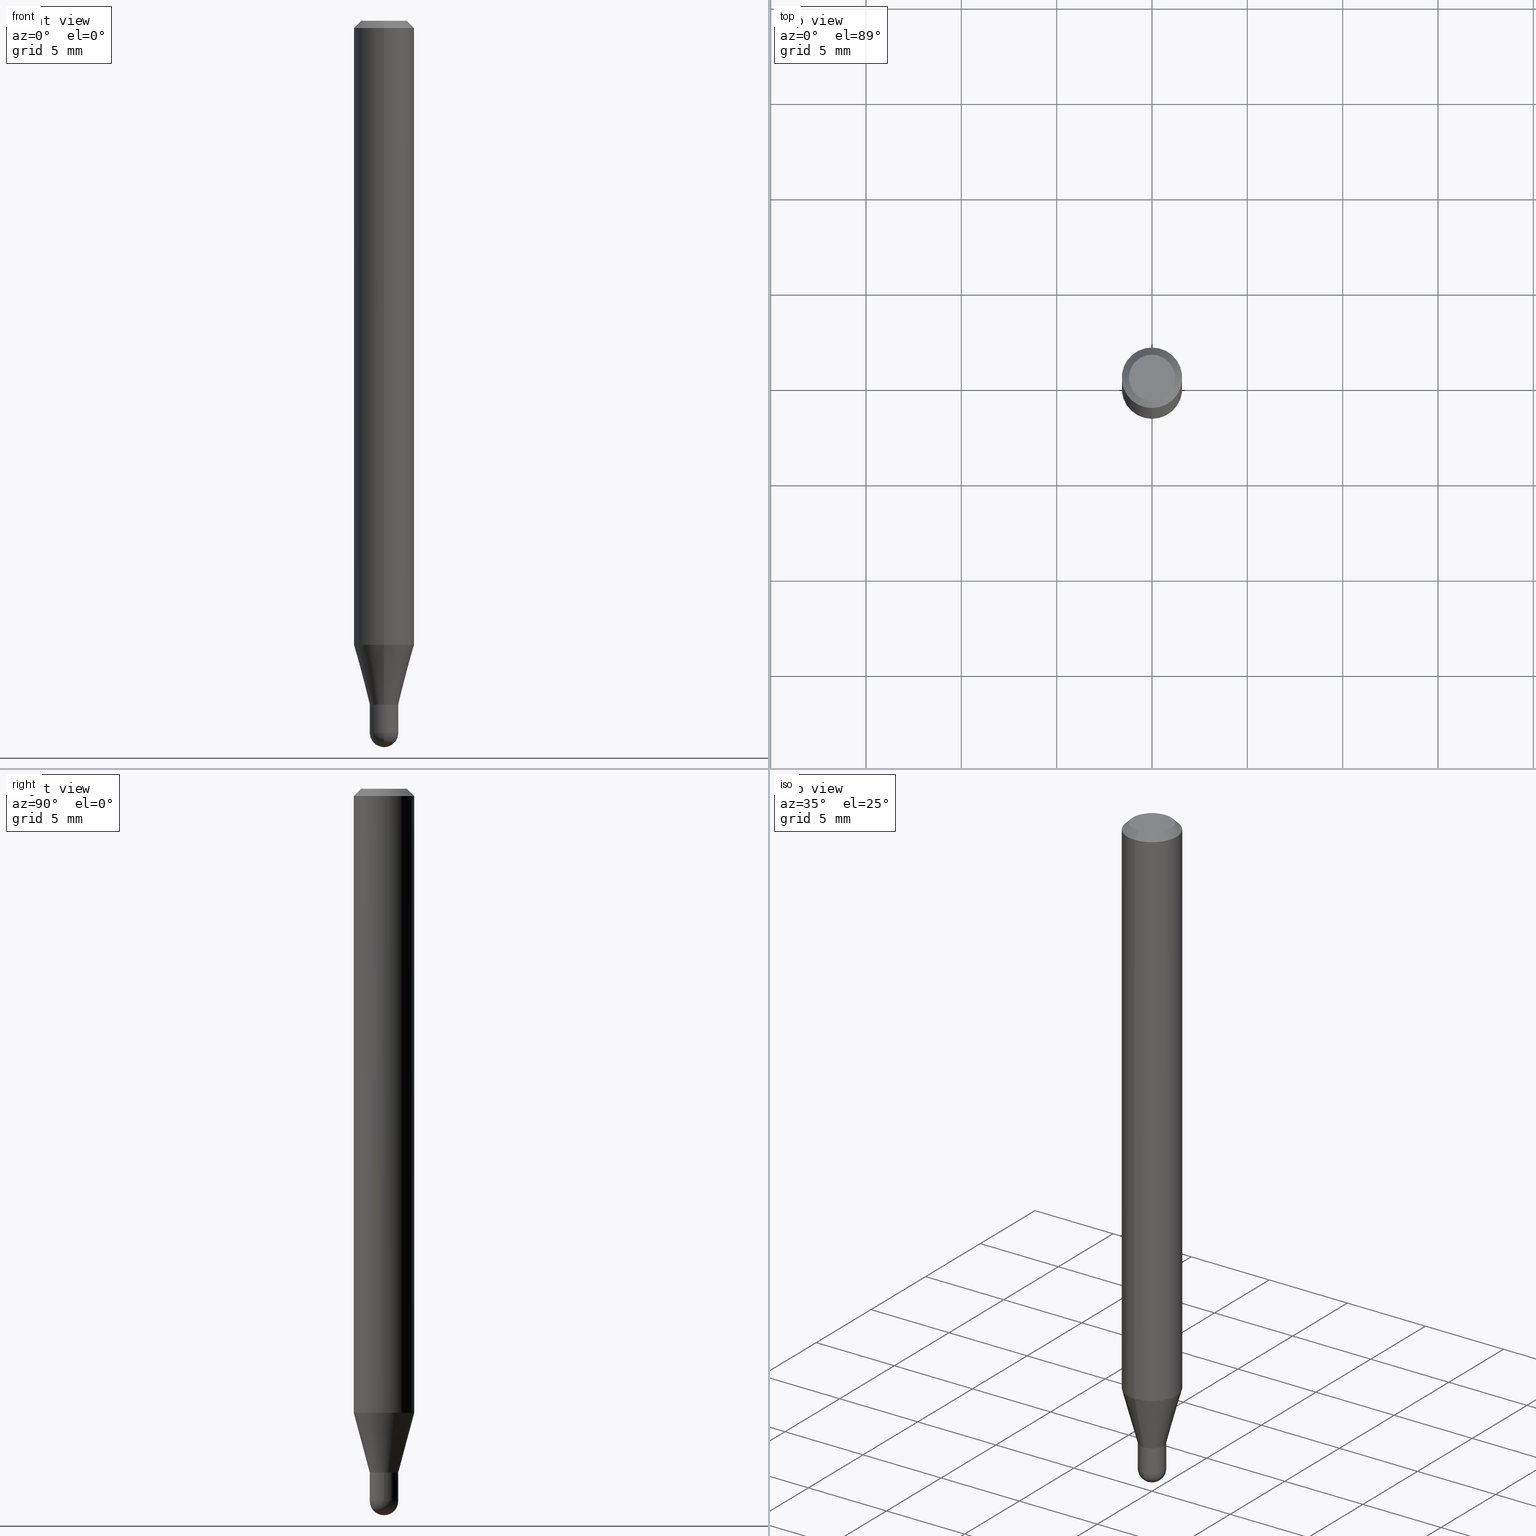
[diagram: canonical four-view strip — front | top / right | iso, engineering-drawing reading convention]
A machine part, canonical four-view strip (front | top / right | iso — engineering-drawing reading convention). The complete STEP part file that produces these views, byte-faithful:
ISO-10303-21;
HEADER;
FILE_DESCRIPTION (( 'STEP AP203' ),
    '1' );
FILE_NAME ('01416.STEP',
    '2024-03-07T20:35:12',
    ( '' ),
    ( '' ),
    'SwSTEP 2.0',
    'SolidWorks 2023',
    '' );
FILE_SCHEMA (( 'CONFIG_CONTROL_DESIGN' ));
ENDSEC;

DATA;
#1 = FACE_OUTER_BOUND ( 'NONE', #349, .T. ) ;
#2 = ORIENTED_EDGE ( 'NONE', *, *, #252, .F. ) ;
#3 = CARTESIAN_POINT ( 'NONE',  ( 3.268496584496797545E-16, 0.02949999999999526612, -1.411500000000000199 ) ) ;
#4 = DIRECTION ( 'NONE',  ( -6.982962677686266711E-15, -1.000000000000000000, 3.491480369690895129E-15 ) ) ;
#5 = EDGE_CURVE ( 'NONE', #366, #427, #245, .T. ) ;
#6 = EDGE_LOOP ( 'NONE', ( #290, #237, #457, #326 ) ) ;
#7 = LOCAL_TIME ( 15, 35, 12.00000000000000000, #25 ) ;
#8 = AXIS2_PLACEMENT_3D ( 'NONE', #67, #225, #190 ) ;
#9 = ORIENTED_EDGE ( 'NONE', *, *, #396, .T. ) ;
#10 = EDGE_CURVE ( 'NONE', #99, #315, #319, .T. ) ;
#11 = EDGE_LOOP ( 'NONE', ( #461, #197, #185, #425 ) ) ;
#12 = EDGE_CURVE ( 'NONE', #375, #415, #206, .T. ) ;
#13 = PERSON_AND_ORGANIZATION ( #231, #292 ) ;
#14 = CARTESIAN_POINT ( 'NONE',  ( 3.593539138942164173E-29, -5.137836016826330348E-15, -1.470500000000000140 ) ) ;
#15 = ORIENTED_EDGE ( 'NONE', *, *, #195, .F. ) ;
#16 = FACE_OUTER_BOUND ( 'NONE', #350, .T. ) ;
#17 = DIRECTION ( 'NONE',  ( -2.445469482940536333E-29, 3.491480369690894735E-15, 1.000000000000000000 ) ) ;
#18 = ORIENTED_EDGE ( 'NONE', *, *, #314, .F. ) ;
#19 = DIRECTION ( 'NONE',  ( -2.445469482940536333E-29, 3.491480369690894735E-15, 1.000000000000000000 ) ) ;
#20 = CARTESIAN_POINT ( 'NONE',  ( 4.440892098500937762E-16, 0.06249999999999546890, -1.288342323350232244 ) ) ;
#21 = ORIENTED_EDGE ( 'NONE', *, *, #168, .F. ) ;
#22 = DIRECTION ( 'NONE',  ( -2.445469482940536333E-29, 3.491480369690894735E-15, 1.000000000000000000 ) ) ;
#23 = DIRECTION ( 'NONE',  ( -2.445469482940536333E-29, 3.491480369690894735E-15, 1.000000000000000000 ) ) ;
#24 = ORIENTED_EDGE ( 'NONE', *, *, #142, .T. ) ;
#25 = COORDINATED_UNIVERSAL_TIME_OFFSET ( 5, 0, .BEHIND. ) ;
#26 = DIRECTION ( 'NONE',  ( 2.445469482940536053E-29, -3.491480369690894735E-15, -1.000000000000000000 ) ) ;
#27 = ORIENTED_EDGE ( 'NONE', *, *, #114, .T. ) ;
#28 = CC_DESIGN_APPROVAL ( #268, ( #240 ) ) ;
#29 = AXIS2_PLACEMENT_3D ( 'NONE', #200, #236, #321 ) ;
#30 = EDGE_CURVE ( 'NONE', #60, #437, #422, .T. ) ;
#31 = CC_DESIGN_APPROVAL ( #242, ( #280 ) ) ;
#32 = AXIS2_PLACEMENT_3D ( 'NONE', #14, #134, #372 ) ;
#33 = CC_DESIGN_DATE_AND_TIME_ASSIGNMENT ( #184, #39, ( #280 ) ) ;
#34 = DIRECTION ( 'NONE',  ( 1.000000000000000000, 0.000000000000000000, 0.000000000000000000 ) ) ;
#35 = AXIS2_PLACEMENT_3D ( 'NONE', #455, #337, #347 ) ;
#36 = ORIENTED_EDGE ( 'NONE', *, *, #168, .T. ) ;
#37 = DIRECTION ( 'NONE',  ( 1.000000000000000000, -6.982962677686250144E-15, 0.000000000000000000 ) ) ;
#38 = DIRECTION ( 'NONE',  ( 1.000000000000000000, -6.982962677686265922E-15, 4.876176775795935793E-29 ) ) ;
#39 = DATE_TIME_ROLE ( 'creation_date' ) ;
#40 = ORIENTED_EDGE ( 'NONE', *, *, #396, .F. ) ;
#41 = AXIS2_PLACEMENT_3D ( 'NONE', #48, #345, #332 ) ;
#42 = AXIS2_PLACEMENT_3D ( 'NONE', #247, #458, #243 ) ;
#43 = ADVANCED_FACE ( 'NONE', ( #74 ), #356, .T. ) ;
#44 = ORIENTED_EDGE ( 'NONE', *, *, #482, .F. ) ;
#45 = COORDINATED_UNIVERSAL_TIME_OFFSET ( 5, 0, .BEHIND. ) ;
#46 = DIRECTION ( 'NONE',  ( -6.982962677686266711E-15, -1.000000000000000000, 3.491480369690895129E-15 ) ) ;
#47 = CYLINDRICAL_SURFACE ( 'NONE', #307, 0.02950000000000000192 ) ;
#48 = CARTESIAN_POINT ( 'NONE',  ( 3.451780175170567435E-29, -4.928224541818698514E-15, -1.411500000000000199 ) ) ;
#49 = CARTESIAN_POINT ( 'NONE',  ( 0.000000000000000000, 0.000000000000000000, 0.000000000000000000 ) ) ;
#50 = ORIENTED_EDGE ( 'NONE', *, *, #302, .F. ) ;
#51 = DIRECTION ( 'NONE',  ( -4.851104656540964275E-15, -0.7071067811865500152, -0.7071067811865450192 ) ) ;
#52 = SHAPE_DEFINITION_REPRESENTATION ( #264, #274 ) ;
#53 = DIRECTION ( 'NONE',  ( 1.000000000000000000, -6.982962677686250144E-15, 0.000000000000000000 ) ) ;
#54 = ORIENTED_EDGE ( 'NONE', *, *, #158, .T. ) ;
#55 = CIRCLE ( 'NONE', #73, 0.02950000000000016498 ) ;
#56 = UNCERTAINTY_MEASURE_WITH_UNIT (LENGTH_MEASURE( 1.000000000000000082E-05 ), #394, 'distance_accuracy_value', 'NONE');
#57 = DIRECTION ( 'NONE',  ( -1.000000000000000000, 6.982962677686265922E-15, -4.883557194083112340E-29 ) ) ;
#58 = CALENDAR_DATE ( 2024, 7, 3 ) ;
#59 = FACE_OUTER_BOUND ( 'NONE', #233, .T. ) ;
#60 = VERTEX_POINT ( 'NONE', #3 ) ;
#61 = CARTESIAN_POINT ( 'NONE',  ( -2.059973989917452358E-16, -0.02950000000000005743, 1.029986709058816069E-16 ) ) ;
#62 = EDGE_LOOP ( 'NONE', ( #459, #501, #24, #279 ) ) ;
#63 = DIRECTION ( 'NONE',  ( -6.982962677686265133E-15, -1.000000000000000000, 0.000000000000000000 ) ) ;
#64 = ORIENTED_EDGE ( 'NONE', *, *, #276, .T. ) ;
#65 = ADVANCED_FACE ( 'NONE', ( #361 ), #226, .T. ) ;
#66 = MANIFOLD_SOLID_BREP ( 'Body-Move/Copy2[2]', #435 ) ;
#67 = CARTESIAN_POINT ( 'NONE',  ( 3.593539138942164173E-29, -5.137836016826330348E-15, -1.470500000000000140 ) ) ;
#68 = CARTESIAN_POINT ( 'NONE',  ( 3.450557440429097488E-29, -4.926478801633853754E-15, -1.411000000000000254 ) ) ;
#69 = EDGE_CURVE ( 'NONE', #437, #125, #277, .T. ) ;
#70 = DIRECTION ( 'NONE',  ( -6.982962677686265922E-15, -1.000000000000000000, 0.000000000000000000 ) ) ;
#71 = AXIS2_PLACEMENT_3D ( 'NONE', #310, #469, #434 ) ;
#72 = CARTESIAN_POINT ( 'NONE',  ( 3.596061879495243621E-29, -5.134223308768845522E-15, -1.470500000000000140 ) ) ;
#73 = AXIS2_PLACEMENT_3D ( 'NONE', #205, #57, #411 ) ;
#74 = FACE_OUTER_BOUND ( 'NONE', #204, .T. ) ;
#75 = DIRECTION ( 'NONE',  ( -2.445469482940536333E-29, 3.491480369690894735E-15, 1.000000000000000000 ) ) ;
#76 = CARTESIAN_POINT ( 'NONE',  ( 3.664419098448086283E-29, -5.242641070350946204E-15, -1.500000000000000222 ) ) ;
#77 = FACE_OUTER_BOUND ( 'NONE', #62, .T. ) ;
#78 = PRODUCT_RELATED_PRODUCT_CATEGORY ( 'detail', '', ( #478 ) ) ;
#79 = AXIS2_PLACEMENT_3D ( 'NONE', #228, #400, #34 ) ;
#80 = CARTESIAN_POINT ( 'NONE',  ( -2.025059176528671736E-16, -0.02900000000000492809, -1.411500000000000199 ) ) ;
#81 = VERTEX_POINT ( 'NONE', #109 ) ;
#82 = LOCAL_TIME ( 15, 35, 12.00000000000000000, #499 ) ;
#83 = VECTOR ( 'NONE', #88, 39.37007874015748143 ) ;
#84 = DIRECTION ( 'NONE',  ( 2.438088387897960049E-29, -3.491481338843145188E-15, -1.000000000000000000 ) ) ;
#85 = ORIENTED_EDGE ( 'NONE', *, *, #223, .F. ) ;
#86 = DIRECTION ( 'NONE',  ( -2.445468806185136877E-29, 3.491481338843145188E-15, 1.000000000000000000 ) ) ;
#87 = DIRECTION ( 'NONE',  ( -1.000000000000000000, 6.982962677686265922E-15, -4.876176775795935793E-29 ) ) ;
#88 = DIRECTION ( 'NONE',  ( -1.807323732225377077E-15, -0.2588190451025249028, 0.9659258262890670910 ) ) ;
#89 = VERTEX_POINT ( 'NONE', #358 ) ;
#90 = ORIENTED_EDGE ( 'NONE', *, *, #12, .F. ) ;
#91 = LINE ( 'NONE', #486, #508 ) ;
#92 = LINE ( 'NONE', #171, #497 ) ;
#93 = ORIENTED_EDGE ( 'NONE', *, *, #154, .F. ) ;
#94 = CIRCLE ( 'NONE', #397, 0.02949999999999999845 ) ;
#95 = ADVANCED_FACE ( 'NONE', ( #77 ), #232, .F. ) ;
#96 = CARTESIAN_POINT ( 'NONE',  ( 3.150601835333700931E-29, -4.498221931419294481E-15, -1.288342323350231799 ) ) ;
#97 = DATE_AND_TIME ( #456, #136 ) ;
#98 = DIRECTION ( 'NONE',  ( 5.024295867788190974E-15, 0.7071067811865681119, 0.7071067811865270336 ) ) ;
#99 = VERTEX_POINT ( 'NONE', #479 ) ;
#100 = CC_DESIGN_DATE_AND_TIME_ASSIGNMENT ( #127, #414, ( #240 ) ) ;
#101 = ORIENTED_EDGE ( 'NONE', *, *, #12, .T. ) ;
#102 = AXIS2_PLACEMENT_3D ( 'NONE', #68, #465, #70 ) ;
#103 = AXIS2_PLACEMENT_3D ( 'NONE', #172, #369, #489 ) ;
#104 =( LENGTH_UNIT ( ) NAMED_UNIT ( * ) SI_UNIT ( $, .METRE. ) );
#105 = CIRCLE ( 'NONE', #270, 0.04749999999999999362 ) ;
#106 = CARTESIAN_POINT ( 'NONE',  ( 3.596061879495243621E-29, -5.134223308768845522E-15, -1.470500000000000140 ) ) ;
#107 = COORDINATED_UNIVERSAL_TIME_OFFSET ( 5, 0, .BEHIND. ) ;
#108 = ADVANCED_FACE ( 'NONE', ( #404 ), #117, .F. ) ;
#109 = CARTESIAN_POINT ( 'NONE',  ( 2.096101070492661026E-16, 0.02949999999999495040, -1.470500000000000140 ) ) ;
#110 = FACE_OUTER_BOUND ( 'NONE', #370, .T. ) ;
#111 = CONICAL_SURFACE ( 'NONE', #463, 0.02950000000000019620, 0.2617993877991572349 ) ;
#112 = DIRECTION ( 'NONE',  ( -2.445468806185136597E-29, 3.491481338843145583E-15, 1.000000000000000000 ) ) ;
#113 = ORIENTED_EDGE ( 'NONE', *, *, #179, .F. ) ;
#114 = EDGE_CURVE ( 'NONE', #442, #403, #363, .T. ) ;
#115 = CARTESIAN_POINT ( 'NONE',  ( 3.668204224410806567E-31, -5.237220554536345455E-17, -0.01500000000000000812 ) ) ;
#116 = ORIENTED_EDGE ( 'NONE', *, *, #234, .F. ) ;
#117 = PLANE ( 'NONE',  #71 ) ;
#118 = DIRECTION ( 'NONE',  ( -6.982962677686265922E-15, -1.000000000000000000, 0.000000000000000000 ) ) ;
#119 = APPROVAL_PERSON_ORGANIZATION ( #309, #242, #510 ) ;
#120 = CALENDAR_DATE ( 2024, 7, 3 ) ;
#121 = CIRCLE ( 'NONE', #35, 0.02949999999999999845 ) ;
#122 = LINE ( 'NONE', #255, #420 ) ;
#123 = ADVANCED_FACE ( 'NONE', ( #421 ), #428, .T. ) ;
#124 = LINE ( 'NONE', #446, #83 ) ;
#125 = VERTEX_POINT ( 'NONE', #201 ) ;
#126 = CARTESIAN_POINT ( 'NONE',  ( -4.287811248607203282E-16, -0.06250000000000005551, -0.01499999999999979128 ) ) ;
#127 = DATE_AND_TIME ( #58, #330 ) ;
#128 = DIRECTION ( 'NONE',  ( -2.445468806185136597E-29, 3.491481338843145583E-15, 1.000000000000000000 ) ) ;
#129 = DIRECTION ( 'NONE',  ( -6.982962677686265922E-15, -1.000000000000000000, 4.370956789862821150E-15 ) ) ;
#130 = CC_DESIGN_PERSON_AND_ORGANIZATION_ASSIGNMENT ( #348, #387, ( #280 ) ) ;
#131 = ORIENTED_EDGE ( 'NONE', *, *, #10, .T. ) ;
#132 = CARTESIAN_POINT ( 'NONE',  ( 3.451780175170567435E-29, -4.928224541818698514E-15, -1.411500000000000199 ) ) ;
#133 = PERSON_AND_ORGANIZATION_ROLE ( 'classification_officer' ) ;
#134 = DIRECTION ( 'NONE',  ( 1.000000000000000000, -7.105427357601001070E-15, 4.926315508542082329E-29 ) ) ;
#135 = ORIENTED_EDGE ( 'NONE', *, *, #266, .T. ) ;
#136 = LOCAL_TIME ( 15, 35, 12.00000000000000000, #107 ) ;
#137 = FACE_OUTER_BOUND ( 'NONE', #418, .T. ) ;
#138 = CARTESIAN_POINT ( 'NONE',  ( 2.096101070492627499E-16, 0.02949999999999489489, -1.411000000000000254 ) ) ;
#139 = AXIS2_PLACEMENT_3D ( 'NONE', #72, #230, #37 ) ;
#140 = AXIS2_PLACEMENT_3D ( 'NONE', #474, #75, #194 ) ;
#141 = ORIENTED_EDGE ( 'NONE', *, *, #179, .T. ) ;
#142 = EDGE_CURVE ( 'NONE', #315, #99, #269, .T. ) ;
#143 = CARTESIAN_POINT ( 'NONE',  ( 0.02949999999999999845, -5.134223308768844733E-15, -1.411500000000000199 ) ) ;
#144 = CALENDAR_DATE ( 2024, 7, 3 ) ;
#145 = ORIENTED_EDGE ( 'NONE', *, *, #266, .F. ) ;
#146 = PRODUCT_DEFINITION_FORMATION_WITH_SPECIFIED_SOURCE ( 'ANY', '', #478, .NOT_KNOWN. ) ;
#147 = ORIENTED_EDGE ( 'NONE', *, *, #195, .T. ) ;
#148 = CIRCLE ( 'NONE', #207, 0.02950000000000000192 ) ;
#149 = VECTOR ( 'NONE', #98, 39.37007874015748143 ) ;
#150 = EDGE_CURVE ( 'NONE', #257, #60, #152, .T. ) ;
#151 = LENGTH_MEASURE_WITH_UNIT ( LENGTH_MEASURE( 0.02539999999999999897 ), #104 );
#152 = CIRCLE ( 'NONE', #440, 0.02950000000000019620 ) ;
#153 = CONICAL_SURFACE ( 'NONE', #160, 0.02899999999999999800, 0.7853981633974739252 ) ;
#154 = EDGE_CURVE ( 'NONE', #403, #291, #91, .T. ) ;
#155 = DIRECTION ( 'NONE',  ( 6.982962677686265922E-15, 1.000000000000000000, -3.483106191921935554E-15 ) ) ;
#156 = CARTESIAN_POINT ( 'NONE',  ( 3.451780175170567435E-29, -4.928224541818698514E-15, -1.411500000000000199 ) ) ;
#157 = EDGE_LOOP ( 'NONE', ( #21, #85, #135, #439 ) ) ;
#158 = EDGE_CURVE ( 'NONE', #60, #257, #283, .T. ) ;
#159 = ORIENTED_EDGE ( 'NONE', *, *, #314, .T. ) ;
#160 = AXIS2_PLACEMENT_3D ( 'NONE', #156, #378, #161 ) ;
#161 = DIRECTION ( 'NONE',  ( -6.982962677686265133E-15, -1.000000000000000000, 0.000000000000000000 ) ) ;
#162 = ORIENTED_EDGE ( 'NONE', *, *, #339, .T. ) ;
#163 = CARTESIAN_POINT ( 'NONE',  ( 0.000000000000000000, 0.000000000000000000, 0.000000000000000000 ) ) ;
#164 = ORIENTED_EDGE ( 'NONE', *, *, #229, .T. ) ;
#165 = DIRECTION ( 'NONE',  ( -6.982962677686265922E-15, -1.000000000000000000, 4.370956789862821150E-15 ) ) ;
#166 = DIRECTION ( 'NONE',  ( -2.445469482940536333E-29, 3.491480369690894735E-15, 1.000000000000000000 ) ) ;
#167 = ORIENTED_EDGE ( 'NONE', *, *, #150, .T. ) ;
#168 = EDGE_CURVE ( 'NONE', #450, #392, #253, .T. ) ;
#169 = PERSON_AND_ORGANIZATION_ROLE ( 'creator' ) ;
#170 = CIRCLE ( 'NONE', #199, 0.04749999999999999362 ) ;
#171 = CARTESIAN_POINT ( 'NONE',  ( 4.364351673553919652E-16, 0.06249999999999995143, -0.01500000000000022669 ) ) ;
#172 = CARTESIAN_POINT ( 'NONE',  ( 0.000000000000000000, 0.000000000000000000, 0.000000000000000000 ) ) ;
#173 = EDGE_LOOP ( 'NONE', ( #408, #490, #15, #93, #9 ) ) ;
#174 = CARTESIAN_POINT ( 'NONE',  ( 3.593539138942164173E-29, -5.137836016826330348E-15, -1.470500000000000140 ) ) ;
#175 = ORIENTED_EDGE ( 'NONE', *, *, #142, .F. ) ;
#176 = LINE ( 'NONE', #61, #367 ) ;
#177 = APPLICATION_PROTOCOL_DEFINITION ( 'international standard', 'config_control_design', 1994, #485 ) ;
#178 = ORIENTED_EDGE ( 'NONE', *, *, #476, .F. ) ;
#179 = EDGE_CURVE ( 'NONE', #480, #442, #55, .T. ) ;
#180 = DATE_AND_TIME ( #120, #419 ) ;
#181 = CARTESIAN_POINT ( 'NONE',  ( 3.596061879495243621E-29, -5.134223308768845522E-15, -1.470500000000000140 ) ) ;
#182 = CIRCLE ( 'NONE', #506, 0.02950000000000000192 ) ;
#183 = EDGE_LOOP ( 'NONE', ( #322, #36, #159, #145 ) ) ;
#184 = DATE_AND_TIME ( #144, #82 ) ;
#185 = ORIENTED_EDGE ( 'NONE', *, *, #203, .T. ) ;
#186 =( NAMED_UNIT ( * ) SI_UNIT ( $, .STERADIAN. ) SOLID_ANGLE_UNIT ( ) );
#187 = EDGE_CURVE ( 'NONE', #60, #315, #211, .T. ) ;
#188 = AXIS2_PLACEMENT_3D ( 'NONE', #417, #26, #386 ) ;
#189 = EDGE_CURVE ( 'NONE', #257, #99, #176, .T. ) ;
#190 = DIRECTION ( 'NONE',  ( -6.982962677686265922E-15, -1.000000000000000000, 0.000000000000000000 ) ) ;
#191 = CARTESIAN_POINT ( 'NONE',  ( 3.451780175170567435E-29, -4.928224541818698514E-15, -1.411500000000000199 ) ) ;
#192 = ADVANCED_FACE ( 'NONE', ( #137 ), #429, .T. ) ;
#193 = AXIS2_PLACEMENT_3D ( 'NONE', #300, #84, #87 ) ;
#194 = DIRECTION ( 'NONE',  ( -6.982962677686265922E-15, -1.000000000000000000, 3.491480369690895129E-15 ) ) ;
#195 = EDGE_CURVE ( 'NONE', #291, #427, #94, .T. ) ;
#196 = CARTESIAN_POINT ( 'NONE',  ( 2.060573933704635277E-16, 0.02899999999999506792, -1.411500000000000199 ) ) ;
#197 = ORIENTED_EDGE ( 'NONE', *, *, #252, .T. ) ;
#198 = CC_DESIGN_SECURITY_CLASSIFICATION ( #240, ( #146 ) ) ;
#199 = AXIS2_PLACEMENT_3D ( 'NONE', #362, #19, #46 ) ;
#200 = CARTESIAN_POINT ( 'NONE',  ( 0.000000000000000000, 0.000000000000000000, 0.000000000000000000 ) ) ;
#201 = CARTESIAN_POINT ( 'NONE',  ( 4.440892098500942692E-16, 0.06249999999999995143, -0.01500000000000022669 ) ) ;
#202 = CALENDAR_DATE ( 2024, 7, 3 ) ;
#203 = EDGE_CURVE ( 'NONE', #301, #392, #500, .T. ) ;
#204 = EDGE_LOOP ( 'NONE', ( #219, #162, #27, #496, #423 ) ) ;
#205 = CARTESIAN_POINT ( 'NONE',  ( 3.593539138942164173E-29, -5.137836016826330348E-15, -1.470500000000000140 ) ) ;
#206 = CIRCLE ( 'NONE', #254, 0.02899999999999999800 ) ;
#207 = AXIS2_PLACEMENT_3D ( 'NONE', #181, #212, #53 ) ;
#208 = CARTESIAN_POINT ( 'NONE',  ( -2.059973989917116845E-16, -0.02950000000000512629, -1.411500000000000199 ) ) ;
#209 = CARTESIAN_POINT ( 'NONE',  ( -0.02949999999999999845, -4.821614502223743520E-15, -1.411500000000000199 ) ) ;
#210 = ORIENTED_EDGE ( 'NONE', *, *, #30, .F. ) ;
#211 = LINE ( 'NONE', #380, #351 ) ;
#212 = DIRECTION ( 'NONE',  ( -2.445468806185136597E-29, 3.491481338843145583E-15, 1.000000000000000000 ) ) ;
#213 = ADVANCED_FACE ( 'NONE', ( #110 ), #111, .T. ) ;
#214 = CARTESIAN_POINT ( 'NONE',  ( 3.668204224410806567E-31, -5.237220554536345455E-17, -0.01500000000000000812 ) ) ;
#215 = EDGE_LOOP ( 'NONE', ( #251, #90 ) ) ;
#216 = CARTESIAN_POINT ( 'NONE',  ( 3.451779219930320513E-29, -4.928225909777100212E-15, -1.411500000000000199 ) ) ;
#217 = DIMENSIONAL_EXPONENTS ( 1.000000000000000000, 0.000000000000000000, 0.000000000000000000, 0.000000000000000000, 0.000000000000000000, 0.000000000000000000, 0.000000000000000000 ) ;
#218 = APPROVAL_DATE_TIME ( #97, #242 ) ;
#219 = ORIENTED_EDGE ( 'NONE', *, *, #5, .F. ) ;
#220 = VECTOR ( 'NONE', #316, 39.37007874015748143 ) ;
#221 = CIRCLE ( 'NONE', #468, 0.06250000000000000000 ) ;
#222 = ORIENTED_EDGE ( 'NONE', *, *, #467, .F. ) ;
#223 = EDGE_CURVE ( 'NONE', #89, #450, #105, .T. ) ;
#224 = ADVANCED_FACE ( 'NONE', ( #281 ), #317, .F. ) ;
#225 = DIRECTION ( 'NONE',  ( 1.000000000000000000, -6.982962677686265922E-15, 4.883557194083112340E-29 ) ) ;
#226 = CONICAL_SURFACE ( 'NONE', #407, 0.06250000000000000000, 0.7853981633974483900 ) ;
#227 = APPROVAL_PERSON_ORGANIZATION ( #13, #268, #259 ) ;
#228 = CARTESIAN_POINT ( 'NONE',  ( 0.000000000000000000, 0.000000000000000000, 0.000000000000000000 ) ) ;
#229 = EDGE_CURVE ( 'NONE', #450, #89, #170, .T. ) ;
#230 = DIRECTION ( 'NONE',  ( -2.445468806185136597E-29, 3.491481338843145583E-15, 1.000000000000000000 ) ) ;
#231 = PERSON ( 'UNSPECIFIED', 'UNSPECIFIED', 'UNSPECIFIED', ('UNSPECIFIED'), ('UNSPECIFIED'), ('UNSPECIFIED') ) ;
#232 = CYLINDRICAL_SURFACE ( 'NONE', #294, 0.02950000000000005743 ) ;
#233 = EDGE_LOOP ( 'NONE', ( #298, #164 ) ) ;
#234 = EDGE_CURVE ( 'NONE', #480, #81, #265, .T. ) ;
#235 = CARTESIAN_POINT ( 'NONE',  ( 2.096101070492654370E-16, 0.02949999999999526612, -1.411500000000000199 ) ) ;
#236 = DIRECTION ( 'NONE',  ( -2.445469482940536333E-29, 3.491480369690894735E-15, 1.000000000000000000 ) ) ;
#237 = ORIENTED_EDGE ( 'NONE', *, *, #482, .T. ) ;
#238 = CARTESIAN_POINT ( 'NONE',  ( 0.02950000000000000192, -5.237222008264717388E-15, -1.470500000000000140 ) ) ;
#239 = EDGE_LOOP ( 'NONE', ( #368, #260, #18, #388 ) ) ;
#240 = SECURITY_CLASSIFICATION ( '', '', #487 ) ;
#241 = DIRECTION ( 'NONE',  ( 1.839019923739647647E-15, 0.2588190451025316197, 0.9659258262890653146 ) ) ;
#242 = APPROVAL ( #355, 'UNSPECIFIED' ) ;
#243 = DIRECTION ( 'NONE',  ( -6.982962677686265922E-15, -1.000000000000000000, 0.000000000000000000 ) ) ;
#244 = DIRECTION ( 'NONE',  ( 1.000000000000000000, -6.982962677686250144E-15, 0.000000000000000000 ) ) ;
#245 = LINE ( 'NONE', #340, #431 ) ;
#246 =( GEOMETRIC_REPRESENTATION_CONTEXT ( 3 ) GLOBAL_UNCERTAINTY_ASSIGNED_CONTEXT ( ( #56 ) ) GLOBAL_UNIT_ASSIGNED_CONTEXT ( ( #394, #395, #186 ) ) REPRESENTATION_CONTEXT ( 'NONE', 'WORKASPACE' ) );
#247 = CARTESIAN_POINT ( 'NONE',  ( 3.451780175170567435E-29, -4.928224541818698514E-15, -1.411500000000000199 ) ) ;
#248 = APPROVAL_DATE_TIME ( #287, #268 ) ;
#249 = DIRECTION ( 'NONE',  ( -6.982962677686265922E-15, -1.000000000000000000, 0.000000000000000000 ) ) ;
#250 = FACE_OUTER_BOUND ( 'NONE', #239, .T. ) ;
#251 = ORIENTED_EDGE ( 'NONE', *, *, #357, .F. ) ;
#252 = EDGE_CURVE ( 'NONE', #437, #301, #391, .T. ) ;
#253 = LINE ( 'NONE', #126, #484 ) ;
#254 = AXIS2_PLACEMENT_3D ( 'NONE', #191, #353, #338 ) ;
#255 = CARTESIAN_POINT ( 'NONE',  ( -2.025059176528671736E-16, -0.02900000000000492809, -1.411500000000000199 ) ) ;
#256 = PERSON_AND_ORGANIZATION ( #231, #292 ) ;
#257 = VERTEX_POINT ( 'NONE', #208 ) ;
#258 = DIRECTION ( 'NONE',  ( -6.982962677686265922E-15, -1.000000000000000000, 0.000000000000000000 ) ) ;
#259 = APPROVAL_ROLE ( '' ) ;
#260 = ORIENTED_EDGE ( 'NONE', *, *, #69, .T. ) ;
#261 = EDGE_LOOP ( 'NONE', ( #113, #335, #40, #282 ) ) ;
#262 = ADVANCED_FACE ( 'NONE', ( #16 ), #328, .T. ) ;
#263 = DIRECTION ( 'NONE',  ( -2.445469482940536333E-29, 3.491480369690894735E-15, 1.000000000000000000 ) ) ;
#264 = PRODUCT_DEFINITION_SHAPE ( 'NONE', 'NONE',  #280 ) ;
#265 = CIRCLE ( 'NONE', #32, 0.02950000000000016498 ) ;
#266 = EDGE_CURVE ( 'NONE', #89, #125, #92, .T. ) ;
#267 = APPLICATION_PROTOCOL_DEFINITION ( 'international standard', 'config_control_design', 1994, #271 ) ;
#268 = APPROVAL ( #495, 'UNSPECIFIED' ) ;
#269 = CIRCLE ( 'NONE', #344, 0.02949999999999992212 ) ;
#270 = AXIS2_PLACEMENT_3D ( 'NONE', #313, #471, #4 ) ;
#271 = APPLICATION_CONTEXT ( 'configuration controlled 3d designs of mechanical parts and assemblies' ) ;
#272 = DIRECTION ( 'NONE',  ( -2.445469482940536333E-29, 3.491480369690894735E-15, 1.000000000000000000 ) ) ;
#273 = EDGE_CURVE ( 'NONE', #427, #291, #121, .T. ) ;
#274 = ADVANCED_BREP_SHAPE_REPRESENTATION ( '01416', ( #413, #66, #79 ), #246 ) ;
#275 = CARTESIAN_POINT ( 'NONE',  ( 3.668204224410806567E-31, -5.237220554536345455E-17, -0.01500000000000000812 ) ) ;
#276 = EDGE_CURVE ( 'NONE', #415, #99, #122, .T. ) ;
#277 = LINE ( 'NONE', #438, #220 ) ;
#278 = CARTESIAN_POINT ( 'NONE',  ( 3.451780175170567435E-29, -4.928224541818698514E-15, -1.411500000000000199 ) ) ;
#279 = ORIENTED_EDGE ( 'NONE', *, *, #189, .F. ) ;
#280 = PRODUCT_DEFINITION ( 'UNKNOWN', '', #146, #410 ) ;
#281 = FACE_OUTER_BOUND ( 'NONE', #384, .T. ) ;
#282 = ORIENTED_EDGE ( 'NONE', *, *, #114, .F. ) ;
#283 = CIRCLE ( 'NONE', #42, 0.02950000000000019620 ) ;
#284 = VECTOR ( 'NONE', #393, 39.37007874015748143 ) ;
#285 = DIRECTION ( 'NONE',  ( -6.982962677686265922E-15, -1.000000000000000000, 3.483106191921935554E-15 ) ) ;
#286 = DIRECTION ( 'NONE',  ( -6.982962677686265922E-15, -1.000000000000000000, 0.000000000000000000 ) ) ;
#287 = DATE_AND_TIME ( #202, #7 ) ;
#288 = DIRECTION ( 'NONE',  ( -4.937700262164674260E-15, -0.7071067811865632269, 0.7071067811865319186 ) ) ;
#289 = FACE_OUTER_BOUND ( 'NONE', #173, .T. ) ;
#290 = ORIENTED_EDGE ( 'NONE', *, *, #357, .T. ) ;
#291 = VERTEX_POINT ( 'NONE', #143 ) ;
#292 = ORGANIZATION ( 'UNSPECIFIED', 'UNSPECIFIED', '' ) ;
#293 = ADVANCED_FACE ( 'NONE', ( #59 ), #448, .F. ) ;
#294 = AXIS2_PLACEMENT_3D ( 'NONE', #163, #272, #324 ) ;
#295 = CARTESIAN_POINT ( 'NONE',  ( 3.451780175170567435E-29, -4.928224541818698514E-15, -1.411500000000000199 ) ) ;
#296 = CIRCLE ( 'NONE', #409, 0.02899999999999999800 ) ;
#297 = FACE_OUTER_BOUND ( 'NONE', #472, .T. ) ;
#298 = ORIENTED_EDGE ( 'NONE', *, *, #223, .T. ) ;
#299 = DIRECTION ( 'NONE',  ( -6.982962677686265922E-15, -1.000000000000000000, 0.000000000000000000 ) ) ;
#300 = CARTESIAN_POINT ( 'NONE',  ( 2.059973989917793540E-16, 0.02949999999999506836, -1.411500000000000199 ) ) ;
#301 = VERTEX_POINT ( 'NONE', #488 ) ;
#302 = EDGE_CURVE ( 'NONE', #81, #366, #148, .T. ) ;
#303 = ORIENTED_EDGE ( 'NONE', *, *, #273, .T. ) ;
#304 = CC_DESIGN_PERSON_AND_ORGANIZATION_ASSIGNMENT ( #444, #133, ( #240 ) ) ;
#305 = CARTESIAN_POINT ( 'NONE',  ( 3.451780175170567435E-29, -4.928224541818698514E-15, -1.411500000000000199 ) ) ;
#306 = AXIS2_PLACEMENT_3D ( 'NONE', #473, #470, #38 ) ;
#307 = AXIS2_PLACEMENT_3D ( 'NONE', #49, #112, #441 ) ;
#308 = CARTESIAN_POINT ( 'NONE',  ( -4.364351673553912750E-16, -0.06250000000000005551, -0.01499999999999979128 ) ) ;
#309 = PERSON_AND_ORGANIZATION ( #231, #292 ) ;
#310 = CARTESIAN_POINT ( 'NONE',  ( 3.451780175170567435E-29, -4.928224541818698514E-15, -1.411500000000000199 ) ) ;
#311 = DIRECTION ( 'NONE',  ( -2.445468806185136597E-29, 3.491481338843145583E-15, 1.000000000000000000 ) ) ;
#312 = AXIS2_PLACEMENT_3D ( 'NONE', #214, #507, #466 ) ;
#313 = CARTESIAN_POINT ( 'NONE',  ( 2.166775374745515468E-46, -3.093579265342873094E-32, -8.860365626563013371E-18 ) ) ;
#314 = EDGE_CURVE ( 'NONE', #392, #125, #221, .T. ) ;
#315 = VERTEX_POINT ( 'NONE', #138 ) ;
#316 = DIRECTION ( 'NONE',  ( -2.445469482940536333E-29, 3.491480369690894735E-15, 1.000000000000000000 ) ) ;
#317 = CYLINDRICAL_SURFACE ( 'NONE', #140, 0.02950000000000005743 ) ;
#318 = ORIENTED_EDGE ( 'NONE', *, *, #187, .F. ) ;
#319 = CIRCLE ( 'NONE', #102, 0.02949999999999992212 ) ;
#320 = AXIS2_PLACEMENT_3D ( 'NONE', #275, #166, #329 ) ;
#321 = DIRECTION ( 'NONE',  ( -6.982962677686265922E-15, -1.000000000000000000, 3.491480369690894340E-15 ) ) ;
#322 = ORIENTED_EDGE ( 'NONE', *, *, #229, .F. ) ;
#323 = ADVANCED_FACE ( 'NONE', ( #297 ), #498, .F. ) ;
#324 = DIRECTION ( 'NONE',  ( -6.982962677686265922E-15, -1.000000000000000000, 3.491480369690895129E-15 ) ) ;
#325 = CARTESIAN_POINT ( 'NONE',  ( -3.773273898774340269E-16, -0.04749999999999999362, 1.569849519337544931E-16 ) ) ;
#326 = ORIENTED_EDGE ( 'NONE', *, *, #276, .F. ) ;
#327 = PERSON_AND_ORGANIZATION ( #231, #292 ) ;
#328 = SPHERICAL_SURFACE ( 'NONE', #346, 0.02950000000000016498 ) ;
#329 = DIRECTION ( 'NONE',  ( -6.982962677686265922E-15, -1.000000000000000000, 3.483106191921935554E-15 ) ) ;
#330 = LOCAL_TIME ( 15, 35, 12.00000000000000000, #45 ) ;
#331 = CIRCLE ( 'NONE', #451, 0.02950000000000000192 ) ;
#332 = DIRECTION ( 'NONE',  ( -6.982962677686265133E-15, -1.000000000000000000, 0.000000000000000000 ) ) ;
#333 = PERSON_AND_ORGANIZATION_ROLE ( 'design_supplier' ) ;
#334 = FACE_OUTER_BOUND ( 'NONE', #261, .T. ) ;
#335 = ORIENTED_EDGE ( 'NONE', *, *, #234, .T. ) ;
#336 = CARTESIAN_POINT ( 'NONE',  ( 3.450557440429097488E-29, -4.926478801633853754E-15, -1.411000000000000254 ) ) ;
#337 = DIRECTION ( 'NONE',  ( -2.445468806185136597E-29, 3.491481338843145583E-15, 1.000000000000000000 ) ) ;
#338 = DIRECTION ( 'NONE',  ( -6.982962677686265133E-15, -1.000000000000000000, 0.000000000000000000 ) ) ;
#339 = EDGE_CURVE ( 'NONE', #366, #442, #331, .T. ) ;
#340 = CARTESIAN_POINT ( 'NONE',  ( -0.02950000000000000192, 2.096101070492295684E-16, -1.451085851625197342E-30 ) ) ;
#341 = DIRECTION ( 'NONE',  ( -2.445469482940536333E-29, 3.491480369690894735E-15, 1.000000000000000000 ) ) ;
#342 = PERSON_AND_ORGANIZATION ( #231, #292 ) ;
#343 = ORIENTED_EDGE ( 'NONE', *, *, #150, .F. ) ;
#344 = AXIS2_PLACEMENT_3D ( 'NONE', #336, #481, #299 ) ;
#345 = DIRECTION ( 'NONE',  ( -2.445469482940536333E-29, 3.491480369690894735E-15, 1.000000000000000000 ) ) ;
#346 = AXIS2_PLACEMENT_3D ( 'NONE', #174, #491, #249 ) ;
#347 = DIRECTION ( 'NONE',  ( 1.000000000000000000, -6.982962677686250933E-15, 0.000000000000000000 ) ) ;
#348 = PERSON_AND_ORGANIZATION ( #231, #292 ) ;
#349 = EDGE_LOOP ( 'NONE', ( #44, #101, #64, #175 ) ) ;
#350 = EDGE_LOOP ( 'NONE', ( #116, #141, #449, #50 ) ) ;
#351 = VECTOR ( 'NONE', #22, 39.37007874015748143 ) ;
#352 = ADVANCED_FACE ( 'NONE', ( #334 ), #502, .T. ) ;
#353 = DIRECTION ( 'NONE',  ( -2.445469482940536333E-29, 3.491480369690894735E-15, 1.000000000000000000 ) ) ;
#354 = CARTESIAN_POINT ( 'NONE',  ( 2.078337502098634593E-16, 0.02899999999999506792, -1.411500000000000199 ) ) ;
#355 = APPROVAL_STATUS ( 'not_yet_approved' ) ;
#356 = CYLINDRICAL_SURFACE ( 'NONE', #306, 0.02950000000000000192 ) ;
#357 = EDGE_CURVE ( 'NONE', #415, #375, #296, .T. ) ;
#358 = CARTESIAN_POINT ( 'NONE',  ( 3.840629472727447874E-16, 0.04749999999999999362, -1.747056831868805136E-16 ) ) ;
#359 = DIRECTION ( 'NONE',  ( 1.000000000000000000, -6.982962677686250144E-15, 0.000000000000000000 ) ) ;
#360 = ORIENTED_EDGE ( 'NONE', *, *, #467, .T. ) ;
#361 = FACE_OUTER_BOUND ( 'NONE', #183, .T. ) ;
#362 = CARTESIAN_POINT ( 'NONE',  ( 2.166775374745515468E-46, -3.093579265342873094E-32, -8.860365626563013371E-18 ) ) ;
#363 = CIRCLE ( 'NONE', #139, 0.02950000000000000192 ) ;
#364 = CYLINDRICAL_SURFACE ( 'NONE', #103, 0.06250000000000000000 ) ;
#365 = APPROVAL ( #381, 'UNSPECIFIED' ) ;
#366 = VERTEX_POINT ( 'NONE', #512 ) ;
#367 = VECTOR ( 'NONE', #341, 39.37007874015748143 ) ;
#368 = ORIENTED_EDGE ( 'NONE', *, *, #476, .T. ) ;
#369 = DIRECTION ( 'NONE',  ( -2.445469482940536333E-29, 3.491480369690894735E-15, 1.000000000000000000 ) ) ;
#370 = EDGE_LOOP ( 'NONE', ( #210, #54, #360, #2 ) ) ;
#371 = APPROVAL_ROLE ( '' ) ;
#372 = DIRECTION ( 'NONE',  ( 7.105427357601001070E-15, 1.000000000000000000, 0.000000000000000000 ) ) ;
#373 = CYLINDRICAL_SURFACE ( 'NONE', #29, 0.06250000000000000000 ) ;
#374 = CARTESIAN_POINT ( 'NONE',  ( -4.364351673553916201E-16, -0.06250000000000000000, 2.182175231056808963E-16 ) ) ;
#375 = VERTEX_POINT ( 'NONE', #354 ) ;
#376 = COORDINATED_UNIVERSAL_TIME_OFFSET ( 5, 0, .BEHIND. ) ;
#377 = DIRECTION ( 'NONE',  ( -2.445469482940536333E-29, 3.491480369690894735E-15, 1.000000000000000000 ) ) ;
#378 = DIRECTION ( 'NONE',  ( -2.445469482940536333E-29, 3.491480369690894735E-15, 1.000000000000000000 ) ) ;
#379 = ORIENTED_EDGE ( 'NONE', *, *, #189, .T. ) ;
#380 = CARTESIAN_POINT ( 'NONE',  ( 2.096101070492299382E-16, 0.02950000000000005743, -1.029986709058816069E-16 ) ) ;
#381 = APPROVAL_STATUS ( 'not_yet_approved' ) ;
#382 = CARTESIAN_POINT ( 'NONE',  ( 3.668204224410806567E-31, -5.237220554536345455E-17, -0.01500000000000000812 ) ) ;
#383 = PERSON_AND_ORGANIZATION_ROLE ( 'design_owner' ) ;
#384 = EDGE_LOOP ( 'NONE', ( #318, #343, #379, #131 ) ) ;
#385 = PERSON_AND_ORGANIZATION ( #231, #292 ) ;
#386 = DIRECTION ( 'NONE',  ( 6.982962677686265922E-15, 1.000000000000000000, -3.491480369690894735E-15 ) ) ;
#387 = PERSON_AND_ORGANIZATION_ROLE ( 'creator' ) ;
#388 = ORIENTED_EDGE ( 'NONE', *, *, #203, .F. ) ;
#389 = CLOSED_SHELL ( 'NONE', ( #447, #352, #323, #262, #43 ) ) ;
#390 = CC_DESIGN_APPROVAL ( #365, ( #146 ) ) ;
#391 = CIRCLE ( 'NONE', #433, 0.06250000000000000000 ) ;
#392 = VERTEX_POINT ( 'NONE', #308 ) ;
#393 = DIRECTION ( 'NONE',  ( -2.445469482940536333E-29, 3.491480369690894735E-15, 1.000000000000000000 ) ) ;
#394 =( CONVERSION_BASED_UNIT ( 'INCH', #151 ) LENGTH_UNIT ( ) NAMED_UNIT ( #217 ) );
#395 =( NAMED_UNIT ( * ) PLANE_ANGLE_UNIT ( ) SI_UNIT ( $, .RADIAN. ) );
#396 = EDGE_CURVE ( 'NONE', #403, #81, #182, .T. ) ;
#397 = AXIS2_PLACEMENT_3D ( 'NONE', #216, #426, #460 ) ;
#398 = FACE_OUTER_BOUND ( 'NONE', #157, .T. ) ;
#399 = CONICAL_SURFACE ( 'NONE', #312, 0.06250000000000000000, 0.7853981633974483900 ) ;
#400 = DIRECTION ( 'NONE',  ( 0.000000000000000000, 0.000000000000000000, 1.000000000000000000 ) ) ;
#401 = ADVANCED_FACE ( 'NONE', ( #1 ), #153, .T. ) ;
#402 = CIRCLE ( 'NONE', #320, 0.06250000000000000000 ) ;
#403 = VERTEX_POINT ( 'NONE', #238 ) ;
#404 = FACE_OUTER_BOUND ( 'NONE', #215, .T. ) ;
#405 = CC_DESIGN_PERSON_AND_ORGANIZATION_ASSIGNMENT ( #327, #333, ( #146 ) ) ;
#406 = LINE ( 'NONE', #196, #149 ) ;
#407 = AXIS2_PLACEMENT_3D ( 'NONE', #115, #511, #155 ) ;
#408 = ORIENTED_EDGE ( 'NONE', *, *, #302, .T. ) ;
#409 = AXIS2_PLACEMENT_3D ( 'NONE', #305, #263, #63 ) ;
#410 = DESIGN_CONTEXT ( 'detailed design', #485, 'design' ) ;
#411 = DIRECTION ( 'NONE',  ( -6.982962677686265922E-15, -1.000000000000000000, 0.000000000000000000 ) ) ;
#412 = FACE_OUTER_BOUND ( 'NONE', #11, .T. ) ;
#413 = MANIFOLD_SOLID_BREP ( 'Body-Move/Copy2[1]', #389 ) ;
#414 = DATE_TIME_ROLE ( 'classification_date' ) ;
#415 = VERTEX_POINT ( 'NONE', #80 ) ;
#416 = ADVANCED_FACE ( 'NONE', ( #412 ), #364, .T. ) ;
#417 = CARTESIAN_POINT ( 'NONE',  ( 3.316907271900976096E-16, 0.04749999999999999362, -1.702755003735990023E-16 ) ) ;
#418 = EDGE_LOOP ( 'NONE', ( #167, #503, #178, #222 ) ) ;
#419 = LOCAL_TIME ( 15, 35, 12.00000000000000000, #376 ) ;
#420 = VECTOR ( 'NONE', #288, 39.37007874015748143 ) ;
#421 = FACE_OUTER_BOUND ( 'NONE', #6, .T. ) ;
#422 = LINE ( 'NONE', #235, #505 ) ;
#423 = ORIENTED_EDGE ( 'NONE', *, *, #273, .F. ) ;
#424 = DIRECTION ( 'NONE',  ( -2.445469482940536333E-29, 3.491480369690894735E-15, 1.000000000000000000 ) ) ;
#425 = ORIENTED_EDGE ( 'NONE', *, *, #462, .F. ) ;
#426 = DIRECTION ( 'NONE',  ( -2.445468806185136597E-29, 3.491481338843145583E-15, 1.000000000000000000 ) ) ;
#427 = VERTEX_POINT ( 'NONE', #209 ) ;
#428 = CONICAL_SURFACE ( 'NONE', #41, 0.02899999999999999800, 0.7853981633974739252 ) ;
#429 = CONICAL_SURFACE ( 'NONE', #475, 0.02950000000000019620, 0.2617993877991572349 ) ;
#430 = ADVANCED_FACE ( 'NONE', ( #250 ), #373, .T. ) ;
#431 = VECTOR ( 'NONE', #493, 39.37007874015748143 ) ;
#432 = MECHANICAL_CONTEXT ( 'NONE', #271, 'mechanical' ) ;
#433 = AXIS2_PLACEMENT_3D ( 'NONE', #96, #377, #165 ) ;
#434 = DIRECTION ( 'NONE',  ( -6.982962677686265922E-15, -1.000000000000000000, 3.491480369690894735E-15 ) ) ;
#435 = CLOSED_SHELL ( 'NONE', ( #95, #123, #65, #430, #192, #213, #416, #504, #293, #108, #401, #224 ) ) ;
#436 = CARTESIAN_POINT ( 'NONE',  ( 3.150601835333700931E-29, -4.498221931419294481E-15, -1.288342323350231799 ) ) ;
#437 = VERTEX_POINT ( 'NONE', #20 ) ;
#438 = CARTESIAN_POINT ( 'NONE',  ( 4.440892098500625669E-16, 0.06250000000000000000, -2.182175231056808963E-16 ) ) ;
#439 = ORIENTED_EDGE ( 'NONE', *, *, #462, .T. ) ;
#440 = AXIS2_PLACEMENT_3D ( 'NONE', #132, #424, #286 ) ;
#441 = DIRECTION ( 'NONE',  ( 1.000000000000000000, -6.982962677686265922E-15, 4.876176775795935793E-29 ) ) ;
#442 = VERTEX_POINT ( 'NONE', #477 ) ;
#443 = CIRCLE ( 'NONE', #464, 0.06250000000000000000 ) ;
#444 = PERSON_AND_ORGANIZATION ( #231, #292 ) ;
#445 = CARTESIAN_POINT ( 'NONE',  ( 3.596061879495243621E-29, -5.134223308768845522E-15, -1.470500000000000140 ) ) ;
#446 = CARTESIAN_POINT ( 'NONE',  ( -2.059973989917116845E-16, -0.02950000000000512629, -1.411500000000000199 ) ) ;
#447 = ADVANCED_FACE ( 'NONE', ( #289 ), #47, .T. ) ;
#448 = PLANE ( 'NONE',  #188 ) ;
#449 = ORIENTED_EDGE ( 'NONE', *, *, #339, .F. ) ;
#450 = VERTEX_POINT ( 'NONE', #325 ) ;
#451 = AXIS2_PLACEMENT_3D ( 'NONE', #445, #128, #244 ) ;
#452 = CC_DESIGN_PERSON_AND_ORGANIZATION_ASSIGNMENT ( #256, #383, ( #478 ) ) ;
#453 = DIRECTION ( 'NONE',  ( -2.445469482940536333E-29, 3.491480369690894735E-15, 1.000000000000000000 ) ) ;
#454 = APPROVAL_DATE_TIME ( #180, #365 ) ;
#455 = CARTESIAN_POINT ( 'NONE',  ( 3.451779219930320513E-29, -4.928225909777100212E-15, -1.411500000000000199 ) ) ;
#456 = CALENDAR_DATE ( 2024, 7, 3 ) ;
#457 = ORIENTED_EDGE ( 'NONE', *, *, #10, .F. ) ;
#458 = DIRECTION ( 'NONE',  ( -2.445469482940536333E-29, 3.491480369690894735E-15, 1.000000000000000000 ) ) ;
#459 = ORIENTED_EDGE ( 'NONE', *, *, #158, .F. ) ;
#460 = DIRECTION ( 'NONE',  ( 1.000000000000000000, -6.982962677686250933E-15, 0.000000000000000000 ) ) ;
#461 = ORIENTED_EDGE ( 'NONE', *, *, #69, .F. ) ;
#462 = EDGE_CURVE ( 'NONE', #125, #392, #402, .T. ) ;
#463 = AXIS2_PLACEMENT_3D ( 'NONE', #278, #492, #118 ) ;
#464 = AXIS2_PLACEMENT_3D ( 'NONE', #436, #17, #129 ) ;
#465 = DIRECTION ( 'NONE',  ( -2.445469482940536333E-29, 3.491480369690894735E-15, 1.000000000000000000 ) ) ;
#466 = DIRECTION ( 'NONE',  ( 6.982962677686265922E-15, 1.000000000000000000, -3.483106191921935554E-15 ) ) ;
#467 = EDGE_CURVE ( 'NONE', #257, #301, #124, .T. ) ;
#468 = AXIS2_PLACEMENT_3D ( 'NONE', #382, #23, #285 ) ;
#469 = DIRECTION ( 'NONE',  ( -2.445469482940536053E-29, 3.491480369690894735E-15, 1.000000000000000000 ) ) ;
#470 = DIRECTION ( 'NONE',  ( -2.445468806185136597E-29, 3.491481338843145583E-15, 1.000000000000000000 ) ) ;
#471 = DIRECTION ( 'NONE',  ( -2.445469482940536333E-29, 3.491480369690894735E-15, 1.000000000000000000 ) ) ;
#472 = EDGE_LOOP ( 'NONE', ( #147, #303 ) ) ;
#473 = CARTESIAN_POINT ( 'NONE',  ( 0.000000000000000000, 0.000000000000000000, 0.000000000000000000 ) ) ;
#474 = CARTESIAN_POINT ( 'NONE',  ( 0.000000000000000000, 0.000000000000000000, 0.000000000000000000 ) ) ;
#475 = AXIS2_PLACEMENT_3D ( 'NONE', #295, #453, #258 ) ;
#476 = EDGE_CURVE ( 'NONE', #301, #437, #443, .T. ) ;
#477 = CARTESIAN_POINT ( 'NONE',  ( -2.059973989917094905E-16, -0.02950000000000521996, -1.470500000000000140 ) ) ;
#478 = PRODUCT ( '01416', '01416', '', ( #432 ) ) ;
#479 = CARTESIAN_POINT ( 'NONE',  ( -2.059973989917104766E-16, -0.02950000000000494935, -1.411000000000000254 ) ) ;
#480 = VERTEX_POINT ( 'NONE', #76 ) ;
#481 = DIRECTION ( 'NONE',  ( -2.445469482940536333E-29, 3.491480369690894735E-15, 1.000000000000000000 ) ) ;
#482 = EDGE_CURVE ( 'NONE', #375, #315, #406, .T. ) ;
#483 = DIRECTION ( 'NONE',  ( 4.937700262164548042E-15, 0.7071067811865451302, -0.7071067811865499042 ) ) ;
#484 = VECTOR ( 'NONE', #51, 39.37007874015748143 ) ;
#485 = APPLICATION_CONTEXT ( 'configuration controlled 3d designs of mechanical parts and assemblies' ) ;
#486 = CARTESIAN_POINT ( 'NONE',  ( 0.02950000000000000192, -2.059973989917448660E-16, 1.438472148859801150E-30 ) ) ;
#487 = SECURITY_CLASSIFICATION_LEVEL ( 'unclassified' ) ;
#488 = CARTESIAN_POINT ( 'NONE',  ( -4.364351673553603122E-16, -0.06250000000000451028, -1.288342323350231577 ) ) ;
#489 = DIRECTION ( 'NONE',  ( -6.982962677686265922E-15, -1.000000000000000000, 3.491480369690894340E-15 ) ) ;
#490 = ORIENTED_EDGE ( 'NONE', *, *, #5, .T. ) ;
#491 = DIRECTION ( 'NONE',  ( 1.000000000000000000, -6.982962677686265922E-15, 4.883557194083112340E-29 ) ) ;
#492 = DIRECTION ( 'NONE',  ( -2.445469482940536333E-29, 3.491480369690894735E-15, 1.000000000000000000 ) ) ;
#493 = DIRECTION ( 'NONE',  ( -2.445468806185136877E-29, 3.491481338843145188E-15, 1.000000000000000000 ) ) ;
#494 = CC_DESIGN_PERSON_AND_ORGANIZATION_ASSIGNMENT ( #342, #169, ( #146 ) ) ;
#495 = APPROVAL_STATUS ( 'not_yet_approved' ) ;
#496 = ORIENTED_EDGE ( 'NONE', *, *, #154, .T. ) ;
#497 = VECTOR ( 'NONE', #483, 39.37007874015748143 ) ;
#498 = PLANE ( 'NONE',  #193 ) ;
#499 = COORDINATED_UNIVERSAL_TIME_OFFSET ( 5, 0, .BEHIND. ) ;
#500 = LINE ( 'NONE', #374, #284 ) ;
#501 = ORIENTED_EDGE ( 'NONE', *, *, #187, .T. ) ;
#502 = SPHERICAL_SURFACE ( 'NONE', #8, 0.02950000000000016498 ) ;
#503 = ORIENTED_EDGE ( 'NONE', *, *, #30, .T. ) ;
#504 = ADVANCED_FACE ( 'NONE', ( #398 ), #399, .T. ) ;
#505 = VECTOR ( 'NONE', #241, 39.37007874015748854 ) ;
#506 = AXIS2_PLACEMENT_3D ( 'NONE', #106, #311, #359 ) ;
#507 = DIRECTION ( 'NONE',  ( 2.445469482940536333E-29, -3.491480369690894735E-15, -1.000000000000000000 ) ) ;
#508 = VECTOR ( 'NONE', #86, 39.37007874015748143 ) ;
#509 = APPROVAL_PERSON_ORGANIZATION ( #385, #365, #371 ) ;
#510 = APPROVAL_ROLE ( '' ) ;
#511 = DIRECTION ( 'NONE',  ( 2.445469482940536333E-29, -3.491480369690894735E-15, -1.000000000000000000 ) ) ;
#512 = CARTESIAN_POINT ( 'NONE',  ( -0.02950000000000000192, -4.821614502223743520E-15, -1.470500000000000140 ) ) ;
ENDSEC;
END-ISO-10303-21;
